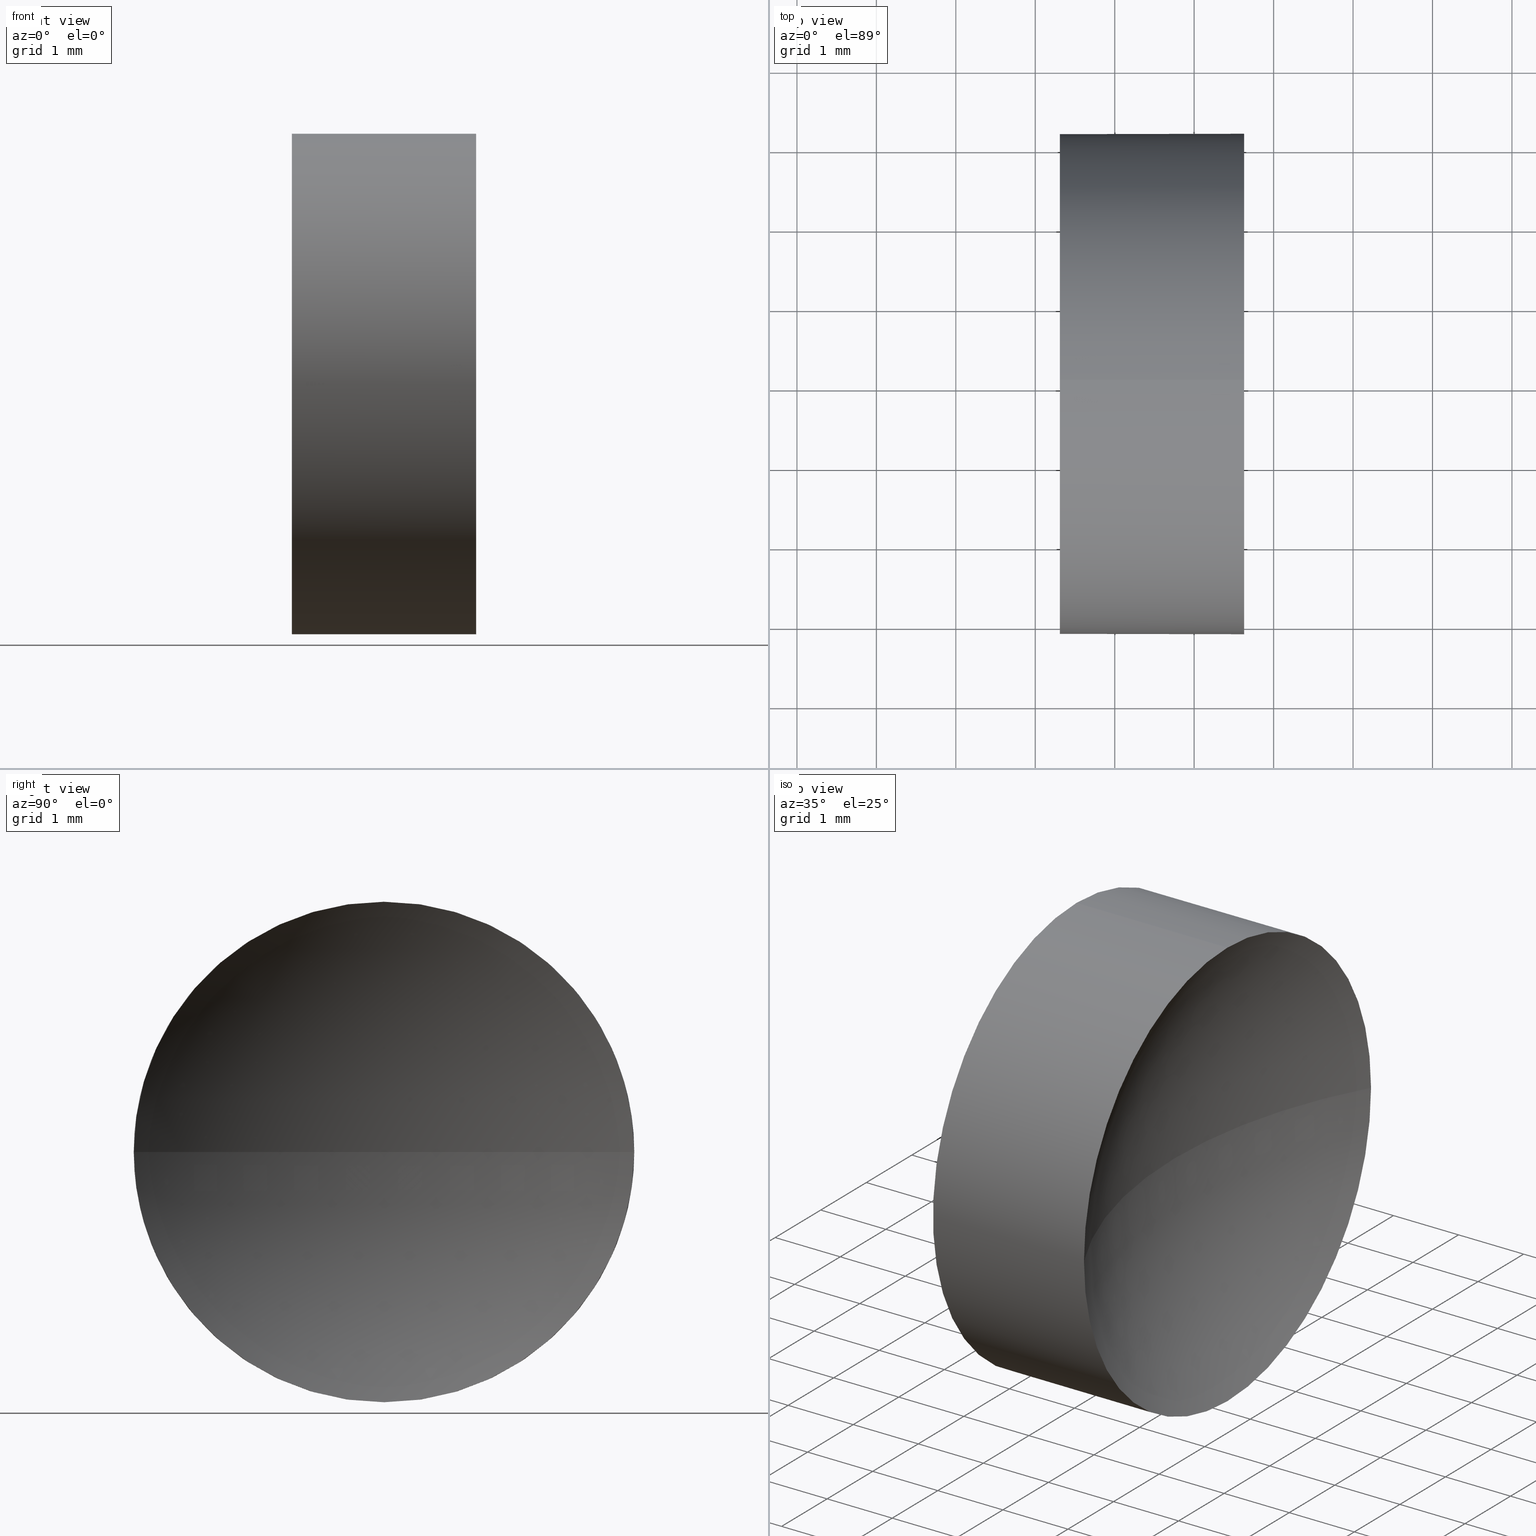
[diagram: canonical four-view strip — front | top / right | iso, engineering-drawing reading convention]
A machine part, canonical four-view strip (front | top / right | iso — engineering-drawing reading convention). The complete STEP part file that produces these views, byte-faithful:
ISO-10303-21;
HEADER;
FILE_DESCRIPTION (( 'STEP AP214' ),
    '1' );
FILE_NAME ('120125.STEP',
    '2019-06-19T01:49:51',
    ( '' ),
    ( '' ),
    'SwSTEP 2.0',
    'SolidWorks 2016',
    '' );
FILE_SCHEMA (( 'AUTOMOTIVE_DESIGN' ));
ENDSEC;

DATA;
#1 = EDGE_LOOP ( 'NONE', ( #6, #35, #50, #148 ) ) ;
#2 = ORIENTED_EDGE ( 'NONE', *, *, #4, .T. ) ;
#3 = SHAPE_DEFINITION_REPRESENTATION ( #14, #147 ) ;
#4 = EDGE_CURVE ( 'NONE', #172, #180, #105, .T. ) ;
#5 = AXIS2_PLACEMENT_3D ( 'NONE', #76, #167, #100 ) ;
#6 = ORIENTED_EDGE ( 'NONE', *, *, #53, .F. ) ;
#7 = DIRECTION ( 'NONE',  ( -1.000000000000000000, 0.0000000000000000000, 0.0000000000000000000 ) ) ;
#8 = PRESENTATION_STYLE_ASSIGNMENT (( #25 ) ) ;
#9 = VERTEX_POINT ( 'NONE', #150 ) ;
#10 = DIRECTION ( 'NONE',  ( -1.000000000000000000, -0.0000000000000000000, -0.0000000000000000000 ) ) ;
#11 = DIRECTION ( 'NONE',  ( 0.0000000000000000000, 0.0000000000000000000, 1.000000000000000000 ) ) ;
#12 = CARTESIAN_POINT ( 'NONE',  ( 30.26926883257449300, 13.03112609140304000, 0.0000000000000000000 ) ) ;
#13 = ADVANCED_FACE ( 'NONE', ( #164 ), #33, .F. ) ;
#14 = PRODUCT_DEFINITION_SHAPE ( 'NONE', 'NONE',  #117 ) ;
#15 = ADVANCED_FACE ( 'NONE', ( #63 ), #32, .F. ) ;
#16 = AXIS2_PLACEMENT_3D ( 'NONE', #153, #84, #73 ) ;
#17 =( GEOMETRIC_REPRESENTATION_CONTEXT ( 3 ) GLOBAL_UNCERTAINTY_ASSIGNED_CONTEXT ( ( #20 ) ) GLOBAL_UNIT_ASSIGNED_CONTEXT ( ( #51, #42, #77 ) ) REPRESENTATION_CONTEXT ( 'NONE', 'WORKASPACE' ) );
#18 = CARTESIAN_POINT ( 'NONE',  ( 30.26926883257449300, 13.03112609140304000, 0.0000000000000000000 ) ) ;
#19 = CIRCLE ( 'NONE', #72, 3.149999999999998100 ) ;
#20 = UNCERTAINTY_MEASURE_WITH_UNIT (LENGTH_MEASURE( 1.000000000000000100E-005 ), #51, 'distance_accuracy_value', 'NONE');
#21 = ORIENTED_EDGE ( 'NONE', *, *, #170, .T. ) ;
#22 = CARTESIAN_POINT ( 'NONE',  ( 24.62931315898982000, 13.03112609140304000, 0.0000000000000000000 ) ) ;
#23 = STYLED_ITEM ( 'NONE', ( #8 ), #147 ) ;
#24 = DIRECTION ( 'NONE',  ( 0.0000000000000000000, 0.0000000000000000000, 1.000000000000000000 ) ) ;
#25 = SURFACE_STYLE_USAGE ( .BOTH. , #119 ) ;
#26 = ORIENTED_EDGE ( 'NONE', *, *, #4, .F. ) ;
#27 = PRESENTATION_STYLE_ASSIGNMENT (( #126 ) ) ;
#28 = UNCERTAINTY_MEASURE_WITH_UNIT (LENGTH_MEASURE( 1.000000000000000100E-005 ), #125, 'distance_accuracy_value', 'NONE');
#29 = CARTESIAN_POINT ( 'NONE',  ( 30.26926883257449300, 13.03112609140304000, 0.0000000000000000000 ) ) ;
#30 = VECTOR ( 'NONE', #184, 1000.000000000000000 ) ;
#31 = ORIENTED_EDGE ( 'NONE', *, *, #106, .F. ) ;
#32 = SPHERICAL_SURFACE ( 'NONE', #34, 6.459999999999995500 ) ;
#33 = PLANE ( 'NONE',  #39 ) ;
#34 = AXIS2_PLACEMENT_3D ( 'NONE', #94, #66, #176 ) ;
#35 = ORIENTED_EDGE ( 'NONE', *, *, #46, .T. ) ;
#36 = EDGE_LOOP ( 'NONE', ( #62, #2 ) ) ;
#37 =( LENGTH_UNIT ( ) NAMED_UNIT ( * ) SI_UNIT ( .MILLI., .METRE. ) );
#38 = CARTESIAN_POINT ( 'NONE',  ( 22.30926883257449200, 13.03112609140304000, -3.149999999999998100 ) ) ;
#39 = AXIS2_PLACEMENT_3D ( 'NONE', #123, #122, #158 ) ;
#40 = CARTESIAN_POINT ( 'NONE',  ( 24.62931315898982000, 13.03112609140304000, -3.149999999999998100 ) ) ;
#41 = DIRECTION ( 'NONE',  ( -1.000000000000000000, -0.0000000000000000000, -0.0000000000000000000 ) ) ;
#42 =( NAMED_UNIT ( * ) PLANE_ANGLE_UNIT ( ) SI_UNIT ( $, .RADIAN. ) );
#43 = ORIENTED_EDGE ( 'NONE', *, *, #85, .T. ) ;
#44 = PRODUCT_CONTEXT ( 'NONE', #168, 'mechanical' ) ;
#45 = SPHERICAL_SURFACE ( 'NONE', #92, 6.459999999999995500 ) ;
#46 = EDGE_CURVE ( 'NONE', #99, #9, #175, .T. ) ;
#47 = AXIS2_PLACEMENT_3D ( 'NONE', #163, #75, #116 ) ;
#48 = ORIENTED_EDGE ( 'NONE', *, *, #141, .F. ) ;
#49 = AXIS2_PLACEMENT_3D ( 'NONE', #128, #57, #102 ) ;
#50 = ORIENTED_EDGE ( 'NONE', *, *, #170, .F. ) ;
#51 =( LENGTH_UNIT ( ) NAMED_UNIT ( * ) SI_UNIT ( .MILLI., .METRE. ) );
#52 = CARTESIAN_POINT ( 'NONE',  ( 22.30926883257449200, 13.03112609140304000, 3.149999999999998100 ) ) ;
#53 = EDGE_CURVE ( 'NONE', #99, #80, #71, .T. ) ;
#54 = DIRECTION ( 'NONE',  ( 0.0000000000000000000, 0.0000000000000000000, 1.000000000000000000 ) ) ;
#55 = CARTESIAN_POINT ( 'NONE',  ( 24.62931315898982000, 16.18112609140303700, 3.857637417314161200E-016 ) ) ;
#56 = MECHANICAL_DESIGN_GEOMETRIC_PRESENTATION_REPRESENTATION (  '', ( #88 ), #120 ) ;
#57 = DIRECTION ( 'NONE',  ( -1.000000000000000000, -0.0000000000000000000, -0.0000000000000000000 ) ) ;
#58 = CIRCLE ( 'NONE', #98, 6.459999999999997300 ) ;
#59 = SURFACE_STYLE_FILL_AREA ( #186 ) ;
#60 = CIRCLE ( 'NONE', #49, 3.149999999999998100 ) ;
#61 = FACE_OUTER_BOUND ( 'NONE', #93, .T. ) ;
#62 = ORIENTED_EDGE ( 'NONE', *, *, #141, .T. ) ;
#63 = FACE_OUTER_BOUND ( 'NONE', #118, .T. ) ;
#64 = EDGE_CURVE ( 'NONE', #80, #172, #181, .T. ) ;
#65 = MECHANICAL_DESIGN_GEOMETRIC_PRESENTATION_REPRESENTATION (  '', ( #23 ), #159 ) ;
#66 = DIRECTION ( 'NONE',  ( 0.0000000000000000000, 0.0000000000000000000, 1.000000000000000000 ) ) ;
#67 =( NAMED_UNIT ( * ) SI_UNIT ( $, .STERADIAN. ) SOLID_ANGLE_UNIT ( ) );
#68 = SURFACE_SIDE_STYLE ('',( #79 ) ) ;
#69 = COLOUR_RGB ( '',1.000000000000000000, 1.000000000000000000, 1.000000000000000000 ) ;
#70 = ORIENTED_EDGE ( 'NONE', *, *, #64, .F. ) ;
#71 = CIRCLE ( 'NONE', #47, 3.149999999999998100 ) ;
#72 = AXIS2_PLACEMENT_3D ( 'NONE', #185, #101, #11 ) ;
#73 = DIRECTION ( 'NONE',  ( 0.0000000000000000000, 0.0000000000000000000, 1.000000000000000000 ) ) ;
#74 = DIRECTION ( 'NONE',  ( -1.000000000000000000, -0.0000000000000000000, -0.0000000000000000000 ) ) ;
#75 = DIRECTION ( 'NONE',  ( -1.000000000000000000, -0.0000000000000000000, -0.0000000000000000000 ) ) ;
#76 = CARTESIAN_POINT ( 'NONE',  ( 24.62931315898982000, 13.03112609140304000, 0.0000000000000000000 ) ) ;
#77 =( NAMED_UNIT ( * ) SI_UNIT ( $, .STERADIAN. ) SOLID_ANGLE_UNIT ( ) );
#78 = ADVANCED_FACE ( 'NONE', ( #61 ), #103, .T. ) ;
#79 = SURFACE_STYLE_FILL_AREA ( #162 ) ;
#80 = VERTEX_POINT ( 'NONE', #40 ) ;
#81 = EDGE_CURVE ( 'NONE', #146, #180, #109, .T. ) ;
#82 = AXIS2_PLACEMENT_3D ( 'NONE', #22, #151, #160 ) ;
#83 = ORIENTED_EDGE ( 'NONE', *, *, #81, .F. ) ;
#84 = DIRECTION ( 'NONE',  ( -1.000000000000000000, -0.0000000000000000000, -0.0000000000000000000 ) ) ;
#85 = EDGE_CURVE ( 'NONE', #146, #99, #135, .T. ) ;
#86 = CARTESIAN_POINT ( 'NONE',  ( 20.68403063513288800, 13.03112609140304000, 0.0000000000000000000 ) ) ;
#87 = CARTESIAN_POINT ( 'NONE',  ( 20.68403063513288800, 13.03112609140304000, -3.149999999999998100 ) ) ;
#88 = STYLED_ITEM ( 'NONE', ( #27 ), #149 ) ;
#89 = ORIENTED_EDGE ( 'NONE', *, *, #106, .T. ) ;
#90 = APPLICATION_PROTOCOL_DEFINITION ( 'draft international standard', 'automotive_design', 1998, #168 ) ;
#91 = ADVANCED_FACE ( 'NONE', ( #140 ), #171, .T. ) ;
#92 = AXIS2_PLACEMENT_3D ( 'NONE', #18, #127, #152 ) ;
#93 = EDGE_LOOP ( 'NONE', ( #142, #104, #48, #83, #43 ) ) ;
#94 = CARTESIAN_POINT ( 'NONE',  ( 30.26926883257449300, 13.03112609140304000, 0.0000000000000000000 ) ) ;
#95 = FACE_OUTER_BOUND ( 'NONE', #1, .T. ) ;
#96 = AXIS2_PLACEMENT_3D ( 'NONE', #144, #165, #143 ) ;
#97 =( NAMED_UNIT ( * ) PLANE_ANGLE_UNIT ( ) SI_UNIT ( $, .RADIAN. ) );
#98 = AXIS2_PLACEMENT_3D ( 'NONE', #12, #139, #7 ) ;
#99 = VERTEX_POINT ( 'NONE', #55 ) ;
#100 = DIRECTION ( 'NONE',  ( 0.0000000000000000000, 0.0000000000000000000, 1.000000000000000000 ) ) ;
#101 = DIRECTION ( 'NONE',  ( -1.000000000000000000, -0.0000000000000000000, -0.0000000000000000000 ) ) ;
#102 = DIRECTION ( 'NONE',  ( 0.0000000000000000000, 0.0000000000000000000, 1.000000000000000000 ) ) ;
#103 = CYLINDRICAL_SURFACE ( 'NONE', #124, 3.149999999999998100 ) ;
#104 = ORIENTED_EDGE ( 'NONE', *, *, #64, .T. ) ;
#105 = CIRCLE ( 'NONE', #16, 3.149999999999998100 ) ;
#106 = EDGE_CURVE ( 'NONE', #178, #146, #19, .T. ) ;
#107 = PRESENTATION_LAYER_ASSIGNMENT (  '', '', ( #88 ) ) ;
#108 = APPLICATION_PROTOCOL_DEFINITION ( 'draft international standard', 'automotive_design', 1998, #133 ) ;
#109 = LINE ( 'NONE', #131, #30 ) ;
#110 = VECTOR ( 'NONE', #10, 1000.000000000000000 ) ;
#111 = PRESENTATION_LAYER_ASSIGNMENT (  '', '', ( #23 ) ) ;
#112 =( NAMED_UNIT ( * ) SI_UNIT ( $, .STERADIAN. ) SOLID_ANGLE_UNIT ( ) );
#113 = EDGE_CURVE ( 'NONE', #80, #178, #173, .T. ) ;
#114 = CARTESIAN_POINT ( 'NONE',  ( 20.68403063513288800, 13.03112609140304000, 0.0000000000000000000 ) ) ;
#115 = EDGE_LOOP ( 'NONE', ( #70, #174, #89, #169, #26 ) ) ;
#116 = DIRECTION ( 'NONE',  ( 0.0000000000000000000, 0.0000000000000000000, 1.000000000000000000 ) ) ;
#117 = PRODUCT_DEFINITION ( 'δ֪', '', #130, #145 ) ;
#118 = EDGE_LOOP ( 'NONE', ( #136, #154, #31, #21 ) ) ;
#119 = SURFACE_SIDE_STYLE ('',( #59 ) ) ;
#120 =( GEOMETRIC_REPRESENTATION_CONTEXT ( 3 ) GLOBAL_UNCERTAINTY_ASSIGNED_CONTEXT ( ( #166 ) ) GLOBAL_UNIT_ASSIGNED_CONTEXT ( ( #37, #97, #112 ) ) REPRESENTATION_CONTEXT ( 'NONE', 'WORKASPACE' ) );
#121 = CLOSED_SHELL ( 'NONE', ( #78, #156, #15, #91, #13 ) ) ;
#122 = DIRECTION ( 'NONE',  ( 1.000000000000000000, 0.0000000000000000000, 0.0000000000000000000 ) ) ;
#123 = CARTESIAN_POINT ( 'NONE',  ( 22.30926883257449200, 13.03112609140304000, 0.0000000000000000000 ) ) ;
#124 = AXIS2_PLACEMENT_3D ( 'NONE', #86, #41, #54 ) ;
#125 =( LENGTH_UNIT ( ) NAMED_UNIT ( * ) SI_UNIT ( .MILLI., .METRE. ) );
#126 = SURFACE_STYLE_USAGE ( .BOTH. , #68 ) ;
#127 = DIRECTION ( 'NONE',  ( 0.0000000000000000000, 0.0000000000000000000, 1.000000000000000000 ) ) ;
#128 = CARTESIAN_POINT ( 'NONE',  ( 22.30926883257449200, 13.03112609140304000, 0.0000000000000000000 ) ) ;
#129 = DIRECTION ( 'NONE',  ( 0.0000000000000000000, -1.224646799147353200E-016, 1.000000000000000000 ) ) ;
#130 = PRODUCT_DEFINITION_FORMATION_WITH_SPECIFIED_SOURCE ( '�κ�', '', #157, .NOT_KNOWN. ) ;
#131 = CARTESIAN_POINT ( 'NONE',  ( 20.68403063513288800, 13.03112609140304000, 3.149999999999998100 ) ) ;
#132 = COLOUR_RGB ( '',1.000000000000000000, 1.000000000000000000, 1.000000000000000000 ) ;
#133 = APPLICATION_CONTEXT ( 'automotive_design' ) ;
#134 = PRODUCT_RELATED_PRODUCT_CATEGORY ( 'part', '', ( #157 ) ) ;
#135 = CIRCLE ( 'NONE', #5, 3.149999999999998100 ) ;
#136 = ORIENTED_EDGE ( 'NONE', *, *, #46, .F. ) ;
#137 = AXIS2_PLACEMENT_3D ( 'NONE', #114, #74, #24 ) ;
#138 =( NAMED_UNIT ( * ) PLANE_ANGLE_UNIT ( ) SI_UNIT ( $, .RADIAN. ) );
#139 = DIRECTION ( 'NONE',  ( 0.0000000000000000000, 0.0000000000000000000, -1.000000000000000000 ) ) ;
#140 = FACE_OUTER_BOUND ( 'NONE', #115, .T. ) ;
#141 = EDGE_CURVE ( 'NONE', #180, #172, #60, .T. ) ;
#142 = ORIENTED_EDGE ( 'NONE', *, *, #53, .T. ) ;
#143 = DIRECTION ( 'NONE',  ( 1.000000000000000000, 0.0000000000000000000, 0.0000000000000000000 ) ) ;
#144 = CARTESIAN_POINT ( 'NONE',  ( 0.0000000000000000000, 0.0000000000000000000, 0.0000000000000000000 ) ) ;
#145 = PRODUCT_DEFINITION_CONTEXT ( 'detailed design', #133, 'design' ) ;
#146 = VERTEX_POINT ( 'NONE', #161 ) ;
#147 = ADVANCED_BREP_SHAPE_REPRESENTATION ( '120125', ( #149, #96 ), #17 ) ;
#148 = ORIENTED_EDGE ( 'NONE', *, *, #113, .F. ) ;
#149 = MANIFOLD_SOLID_BREP ( '��ת1', #121 ) ;
#150 = CARTESIAN_POINT ( 'NONE',  ( 23.80926883257449600, 13.03112609140304000, 0.0000000000000000000 ) ) ;
#151 = DIRECTION ( 'NONE',  ( -1.000000000000000000, -0.0000000000000000000, -0.0000000000000000000 ) ) ;
#152 = DIRECTION ( 'NONE',  ( 0.0000000000000000000, -1.000000000000000000, 0.0000000000000000000 ) ) ;
#153 = CARTESIAN_POINT ( 'NONE',  ( 22.30926883257449200, 13.03112609140304000, 0.0000000000000000000 ) ) ;
#154 = ORIENTED_EDGE ( 'NONE', *, *, #85, .F. ) ;
#155 = CARTESIAN_POINT ( 'NONE',  ( 24.62931315898982000, 9.881126091403041700, 0.0000000000000000000 ) ) ;
#156 = ADVANCED_FACE ( 'NONE', ( #95 ), #45, .F. ) ;
#157 = PRODUCT ( '120125', '120125', '', ( #44 ) ) ;
#158 = DIRECTION ( 'NONE',  ( 0.0000000000000000000, 0.0000000000000000000, -1.000000000000000000 ) ) ;
#159 =( GEOMETRIC_REPRESENTATION_CONTEXT ( 3 ) GLOBAL_UNCERTAINTY_ASSIGNED_CONTEXT ( ( #28 ) ) GLOBAL_UNIT_ASSIGNED_CONTEXT ( ( #125, #138, #67 ) ) REPRESENTATION_CONTEXT ( 'NONE', 'WORKASPACE' ) );
#160 = DIRECTION ( 'NONE',  ( 0.0000000000000000000, 0.0000000000000000000, 1.000000000000000000 ) ) ;
#161 = CARTESIAN_POINT ( 'NONE',  ( 24.62931315898982000, 13.03112609140304000, 3.149999999999998100 ) ) ;
#162 = FILL_AREA_STYLE ('',( #179 ) ) ;
#163 = CARTESIAN_POINT ( 'NONE',  ( 24.62931315898982000, 13.03112609140304000, 0.0000000000000000000 ) ) ;
#164 = FACE_OUTER_BOUND ( 'NONE', #36, .T. ) ;
#165 = DIRECTION ( 'NONE',  ( 0.0000000000000000000, 0.0000000000000000000, 1.000000000000000000 ) ) ;
#166 = UNCERTAINTY_MEASURE_WITH_UNIT (LENGTH_MEASURE( 1.000000000000000100E-005 ), #37, 'distance_accuracy_value', 'NONE');
#167 = DIRECTION ( 'NONE',  ( -1.000000000000000000, -0.0000000000000000000, -0.0000000000000000000 ) ) ;
#168 = APPLICATION_CONTEXT ( 'automotive_design' ) ;
#169 = ORIENTED_EDGE ( 'NONE', *, *, #81, .T. ) ;
#170 = EDGE_CURVE ( 'NONE', #178, #9, #58, .T. ) ;
#171 = CYLINDRICAL_SURFACE ( 'NONE', #137, 3.149999999999998100 ) ;
#172 = VERTEX_POINT ( 'NONE', #38 ) ;
#173 = CIRCLE ( 'NONE', #82, 3.149999999999998100 ) ;
#174 = ORIENTED_EDGE ( 'NONE', *, *, #113, .T. ) ;
#175 = CIRCLE ( 'NONE', #183, 6.459999999999995500 ) ;
#176 = DIRECTION ( 'NONE',  ( 0.0000000000000000000, -1.000000000000000000, 0.0000000000000000000 ) ) ;
#177 = FILL_AREA_STYLE_COLOUR ( '', #132 ) ;
#178 = VERTEX_POINT ( 'NONE', #155 ) ;
#179 = FILL_AREA_STYLE_COLOUR ( '', #69 ) ;
#180 = VERTEX_POINT ( 'NONE', #52 ) ;
#181 = LINE ( 'NONE', #87, #110 ) ;
#182 = DIRECTION ( 'NONE',  ( 0.0000000000000000000, -1.000000000000000000, -1.224646799147353200E-016 ) ) ;
#183 = AXIS2_PLACEMENT_3D ( 'NONE', #29, #129, #182 ) ;
#184 = DIRECTION ( 'NONE',  ( -1.000000000000000000, -0.0000000000000000000, -0.0000000000000000000 ) ) ;
#185 = CARTESIAN_POINT ( 'NONE',  ( 24.62931315898982000, 13.03112609140304000, 0.0000000000000000000 ) ) ;
#186 = FILL_AREA_STYLE ('',( #177 ) ) ;
ENDSEC;
END-ISO-10303-21;
